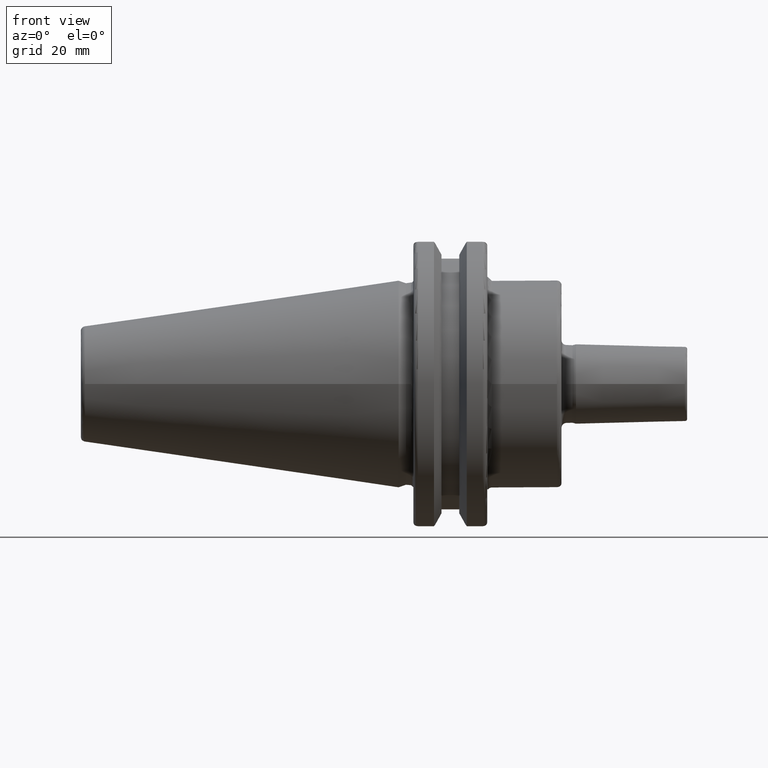
[diagram: clean part render]
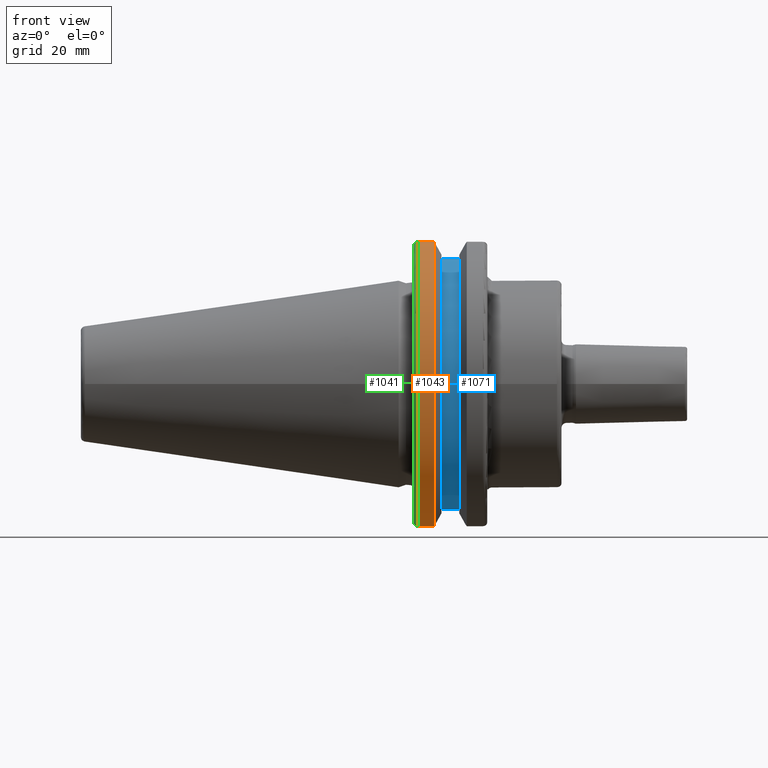
[diagram: same view with three faces highlighted in distinct colors, each labeled with its STEP entity id]
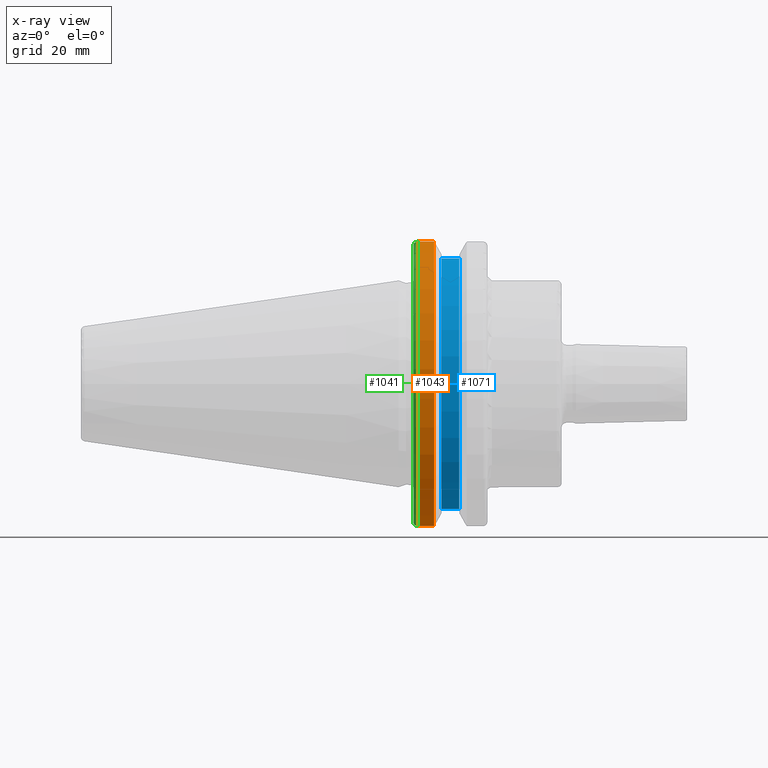
[diagram: x-ray of the same camera — body ghosted, the three highlighted faces saturated]
A machine part, front view with three faces highlighted in distinct colors.
The next image is the same camera in x-ray (body ghosted, the three faces saturated) — at least one of them is partly hidden behind the body in this view.
Their STEP definitions:

[orange] entity #1043 — the highlighted cylindrical surface (partial cylindrical patch) has radius 31.75 mm, axis along (1, 0, 0).
#122=LINE('',#1830,#192);
#123=LINE('',#1836,#193);
#192=VECTOR('',#1380,10.);
#193=VECTOR('',#1383,10.);
#219=CYLINDRICAL_SURFACE('',#1159,31.75);
#251=FACE_OUTER_BOUND('',#314,.T.);
#314=EDGE_LOOP('',(#842,#843,#844,#845));
#403=CIRCLE('',#1157,31.75);
#404=CIRCLE('',#1160,31.75);
#504=VERTEX_POINT('',#1809);
#505=VERTEX_POINT('',#1818);
#506=VERTEX_POINT('',#1829);
#507=VERTEX_POINT('',#1835);
#631=EDGE_CURVE('',#504,#505,#403,.T.);
#633=EDGE_CURVE('',#505,#506,#122,.T.);
#635=EDGE_CURVE('',#507,#504,#123,.T.);
#636=EDGE_CURVE('',#506,#507,#404,.T.);
#842=ORIENTED_EDGE('',*,*,#631,.F.);
#843=ORIENTED_EDGE('',*,*,#635,.F.);
#844=ORIENTED_EDGE('',*,*,#636,.F.);
#845=ORIENTED_EDGE('',*,*,#633,.F.);
#1043=ADVANCED_FACE('',(#251),#219,.T.);
#1157=AXIS2_PLACEMENT_3D('',#1819,#1376,#1377);
#1159=AXIS2_PLACEMENT_3D('',#1834,#1381,#1382);
#1160=AXIS2_PLACEMENT_3D('',#1837,#1384,#1385);
#1376=DIRECTION('center_axis',(-1.,0.,0.));
#1377=DIRECTION('ref_axis',(0.,-1.,1.60812264967664E-16));
#1380=DIRECTION('',(1.,0.,0.));
#1381=DIRECTION('center_axis',(1.,0.,0.));
#1382=DIRECTION('ref_axis',(0.,-1.,1.22464679914735E-16));
#1383=DIRECTION('',(-1.,0.,0.));
#1384=DIRECTION('center_axis',(1.,0.,0.));
#1385=DIRECTION('ref_axis',(0.,0.,-1.));
#1809=CARTESIAN_POINT('',(4.175,-8.67204822802685,-30.5427254764662));
#1818=CARTESIAN_POINT('',(4.175,-8.67204822802685,30.5427254764662));
#1819=CARTESIAN_POINT('Origin',(4.175,0.,0.));
#1829=CARTESIAN_POINT('',(7.60083323092435,-8.67204822802685,30.5427254764662));
#1830=CARTESIAN_POINT('',(5.38791661546218,-8.67204822802685,30.5427254764662));
#1834=CARTESIAN_POINT('Origin',(5.38791661546218,0.,0.));
#1835=CARTESIAN_POINT('',(7.60083323092435,-8.67204822802685,-30.5427254764662));
#1836=CARTESIAN_POINT('',(5.38791661546218,-8.67204822802685,-30.5427254764662));
#1837=CARTESIAN_POINT('Origin',(7.60083323092435,0.,0.));

[blue] entity #1071 — the highlighted cylindrical surface (partial cylindrical patch) has radius 28.15 mm, axis along (1, 0, 0).
#113=LINE('',#1774,#183);
#118=LINE('',#1792,#188);
#183=VECTOR('',#1363,10.);
#188=VECTOR('',#1370,10.);
#225=CYLINDRICAL_SURFACE('',#1206,28.15);
#279=FACE_OUTER_BOUND('',#343,.T.);
#343=EDGE_LOOP('',(#972,#973,#974,#975));
#421=CIRCLE('',#1203,28.15);
#423=CIRCLE('',#1207,28.15);
#493=VERTEX_POINT('',#1771);
#494=VERTEX_POINT('',#1773);
#499=VERTEX_POINT('',#1789);
#500=VERTEX_POINT('',#1791);
#617=EDGE_CURVE('',#494,#493,#113,.T.);
#624=EDGE_CURVE('',#500,#499,#118,.T.);
#682=EDGE_CURVE('',#493,#500,#421,.T.);
#684=EDGE_CURVE('',#494,#499,#423,.T.);
#972=ORIENTED_EDGE('',*,*,#624,.T.);
#973=ORIENTED_EDGE('',*,*,#684,.F.);
#974=ORIENTED_EDGE('',*,*,#617,.T.);
#975=ORIENTED_EDGE('',*,*,#682,.T.);
#1071=ADVANCED_FACE('',(#279),#225,.T.);
#1203=AXIS2_PLACEMENT_3D('',#1966,#1488,#1489);
#1206=AXIS2_PLACEMENT_3D('',#1969,#1494,#1495);
#1207=AXIS2_PLACEMENT_3D('',#1970,#1496,#1497);
#1363=DIRECTION('',(-1.,0.,0.));
#1370=DIRECTION('',(1.,0.,0.));
#1488=DIRECTION('center_axis',(1.,0.,0.));
#1489=DIRECTION('ref_axis',(0.,0.,-1.));
#1494=DIRECTION('center_axis',(1.,0.,0.));
#1495=DIRECTION('ref_axis',(0.,-1.,-1.22464679914735E-16));
#1496=DIRECTION('center_axis',(1.,0.,0.));
#1497=DIRECTION('ref_axis',(0.,0.,-1.));
#1771=CARTESIAN_POINT('',(9.212,-8.19,26.932255754021));
#1773=CARTESIAN_POINT('',(13.042,-8.19,26.932255754021));
#1774=CARTESIAN_POINT('',(11.127,-8.19,26.932255754021));
#1789=CARTESIAN_POINT('',(13.042,-8.19,-26.932255754021));
#1791=CARTESIAN_POINT('',(9.212,-8.19,-26.932255754021));
#1792=CARTESIAN_POINT('',(11.127,-8.19,-26.932255754021));
#1966=CARTESIAN_POINT('Origin',(9.212,0.,0.));
#1969=CARTESIAN_POINT('Origin',(11.127,0.,0.));
#1970=CARTESIAN_POINT('Origin',(13.042,0.,0.));

[green] entity #1041 — the highlighted toroidal blend (fillet) surface has major radius 30.75 mm and minor (blend) radius 1 mm.
#249=FACE_OUTER_BOUND('',#312,.T.);
#312=EDGE_LOOP('',(#832,#833,#834,#835,#836,#837));
#365=B_SPLINE_CURVE_WITH_KNOTS('',3,(#1759,#1760,#1761,#1762,#1763,#1764),
 .UNSPECIFIED.,.F.,.F.,(4,2,4),(0.0977210450333167,0.111963554372601,0.150804064902975),
 .UNSPECIFIED.);
#366=B_SPLINE_CURVE_WITH_KNOTS('',3,(#1801,#1802,#1803,#1804,#1805,#1806),
 .UNSPECIFIED.,.F.,.F.,(4,2,4),(0.452741154494498,0.491581665024872,0.505824174364157),
 .UNSPECIFIED.);
#367=B_SPLINE_CURVE_WITH_KNOTS('',3,(#1810,#1811,#1812,#1813,#1814,#1815,
#1816,#1817),.UNSPECIFIED.,.F.,.F.,(4,2,2,4),(-0.104180282751877,-0.0729784742461442,
-0.0343524753874977,0.),.UNSPECIFIED.);
#368=B_SPLINE_CURVE_WITH_KNOTS('',3,(#1820,#1821,#1822,#1823,#1824,#1825,
#1826,#1827),.UNSPECIFIED.,.F.,.F.,(4,2,2,4),(0.,0.0343524753874981,0.0729784742461436,
0.104180282751876),.UNSPECIFIED.);
#396=CIRCLE('',#1141,30.75);
#403=CIRCLE('',#1157,31.75);
#449=VERTEX_POINT('',#1602);
#450=VERTEX_POINT('',#1603);
#490=VERTEX_POINT('',#1758);
#503=VERTEX_POINT('',#1799);
#504=VERTEX_POINT('',#1809);
#505=VERTEX_POINT('',#1818);
#564=EDGE_CURVE('',#449,#450,#396,.T.);
#613=EDGE_CURVE('',#490,#449,#365,.T.);
#628=EDGE_CURVE('',#450,#503,#366,.T.);
#630=EDGE_CURVE('',#503,#504,#367,.T.);
#631=EDGE_CURVE('',#504,#505,#403,.T.);
#632=EDGE_CURVE('',#505,#490,#368,.T.);
#832=ORIENTED_EDGE('',*,*,#630,.T.);
#833=ORIENTED_EDGE('',*,*,#631,.T.);
#834=ORIENTED_EDGE('',*,*,#632,.T.);
#835=ORIENTED_EDGE('',*,*,#613,.T.);
#836=ORIENTED_EDGE('',*,*,#564,.T.);
#837=ORIENTED_EDGE('',*,*,#628,.T.);
#1016=TOROIDAL_SURFACE('',#1156,30.75,1.);
#1041=ADVANCED_FACE('',(#249),#1016,.T.);
#1141=AXIS2_PLACEMENT_3D('',#1604,#1303,#1304);
#1156=AXIS2_PLACEMENT_3D('',#1808,#1374,#1375);
#1157=AXIS2_PLACEMENT_3D('',#1819,#1376,#1377);
#1303=DIRECTION('center_axis',(1.,0.,0.));
#1304=DIRECTION('ref_axis',(0.,-1.,1.60812264967664E-16));
#1374=DIRECTION('center_axis',(1.,0.,0.));
#1375=DIRECTION('ref_axis',(0.,0.,-1.));
#1376=DIRECTION('center_axis',(-1.,0.,0.));
#1377=DIRECTION('ref_axis',(0.,-1.,1.60812264967664E-16));
#1602=CARTESIAN_POINT('',(3.175,-8.18999999999999,29.6392712461019));
#1603=CARTESIAN_POINT('',(3.175,-8.19,-29.6392712461019));
#1604=CARTESIAN_POINT('Origin',(3.175,0.,0.));
#1758=CARTESIAN_POINT('',(3.31912772509028,-8.19,30.1755016258903));
#1759=CARTESIAN_POINT('Ctrl Pts',(3.31912772509028,-8.19,30.1755016258903));
#1760=CARTESIAN_POINT('Ctrl Pts',(3.29318362718666,-8.19,30.131014531546));
#1761=CARTESIAN_POINT('Ctrl Pts',(3.27103565282437,-8.19,30.0852355256475));
#1762=CARTESIAN_POINT('Ctrl Pts',(3.20451443291695,-8.19,29.9212724384851));
#1763=CARTESIAN_POINT('Ctrl Pts',(3.175,-8.19,29.7687396145364));
#1764=CARTESIAN_POINT('Ctrl Pts',(3.175,-8.19,29.6392712461019));
#1799=CARTESIAN_POINT('',(3.31912772509028,-8.19,-30.1755016258903));
#1801=CARTESIAN_POINT('Ctrl Pts',(3.175,-8.19,-29.6392712461018));
#1802=CARTESIAN_POINT('Ctrl Pts',(3.175,-8.19,-29.7687396145364));
#1803=CARTESIAN_POINT('Ctrl Pts',(3.20451443291695,-8.19,-29.9212724384851));
#1804=CARTESIAN_POINT('Ctrl Pts',(3.27103565282437,-8.19,-30.0852355256475));
#1805=CARTESIAN_POINT('Ctrl Pts',(3.29318362718666,-8.19,-30.131014531546));
#1806=CARTESIAN_POINT('Ctrl Pts',(3.31912772509028,-8.19,-30.1755016258903));
#1808=CARTESIAN_POINT('Origin',(4.175,0.,0.));
#1809=CARTESIAN_POINT('',(4.175,-8.67204822802685,-30.5427254764662));
#1810=CARTESIAN_POINT('Ctrl Pts',(3.31912772509028,-8.19,-30.1755016258903));
#1811=CARTESIAN_POINT('Ctrl Pts',(3.36755369570113,-8.27036828330781,-30.2367261024977));
#1812=CARTESIAN_POINT('Ctrl Pts',(3.43232973376814,-8.34909446036477,-30.2966996242308));
#1813=CARTESIAN_POINT('Ctrl Pts',(3.58532758094931,-8.48862804755884,-30.4029961692546));
#1814=CARTESIAN_POINT('Ctrl Pts',(3.70655857052286,-8.56482138642532,-30.4610401774263));
#1815=CARTESIAN_POINT('Ctrl Pts',(3.92668295662254,-8.6471881193939,-30.5237870709558));
#1816=CARTESIAN_POINT('Ctrl Pts',(4.06049174870834,-8.67204822802686,-30.5427254764662));
#1817=CARTESIAN_POINT('Ctrl Pts',(4.175,-8.67204822802686,-30.5427254764662));
#1818=CARTESIAN_POINT('',(4.175,-8.67204822802685,30.5427254764662));
#1819=CARTESIAN_POINT('Origin',(4.175,0.,0.));
#1820=CARTESIAN_POINT('Ctrl Pts',(4.175,-8.67204822802686,30.5427254764662));
#1821=CARTESIAN_POINT('Ctrl Pts',(4.06049174870834,-8.67204822802686,30.5427254764662));
#1822=CARTESIAN_POINT('Ctrl Pts',(3.92668295662254,-8.64718811939389,30.5237870709558));
#1823=CARTESIAN_POINT('Ctrl Pts',(3.70655857052286,-8.56482138642532,30.4610401774263));
#1824=CARTESIAN_POINT('Ctrl Pts',(3.58532758094931,-8.48862804755884,30.4029961692546));
#1825=CARTESIAN_POINT('Ctrl Pts',(3.43232973376814,-8.34909446036478,30.2966996242308));
#1826=CARTESIAN_POINT('Ctrl Pts',(3.36755369570113,-8.2703682833078,30.2367261024977));
#1827=CARTESIAN_POINT('Ctrl Pts',(3.31912772509028,-8.19,30.1755016258903));